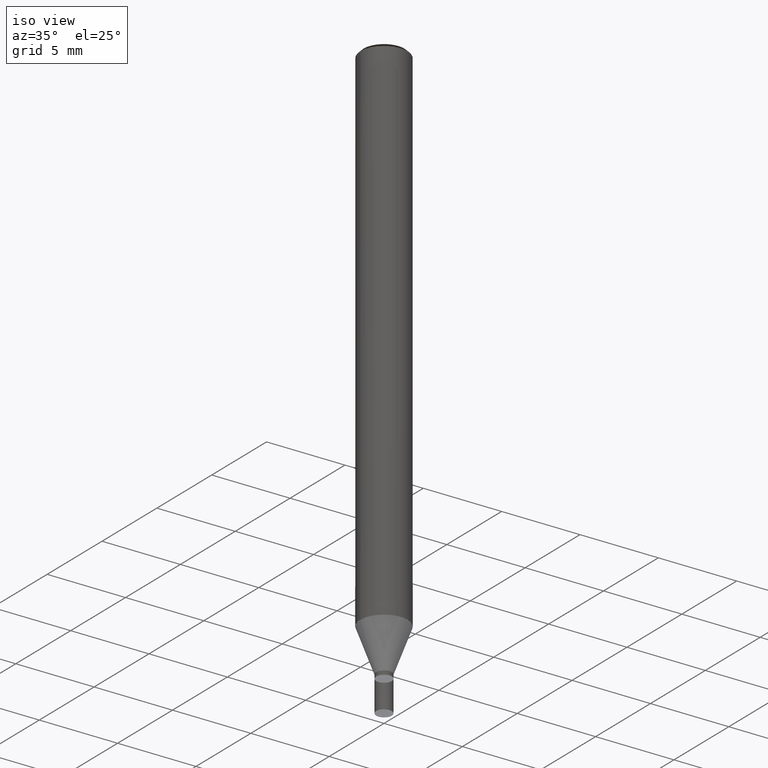
[diagram: clean part render]
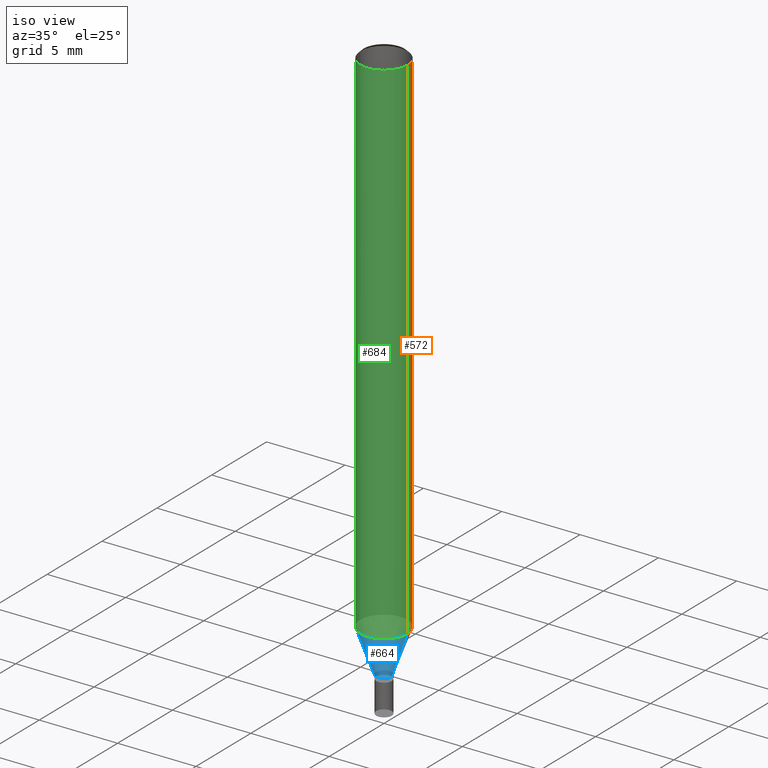
[diagram: same view with three faces highlighted in distinct colors, each labeled with its STEP entity id]
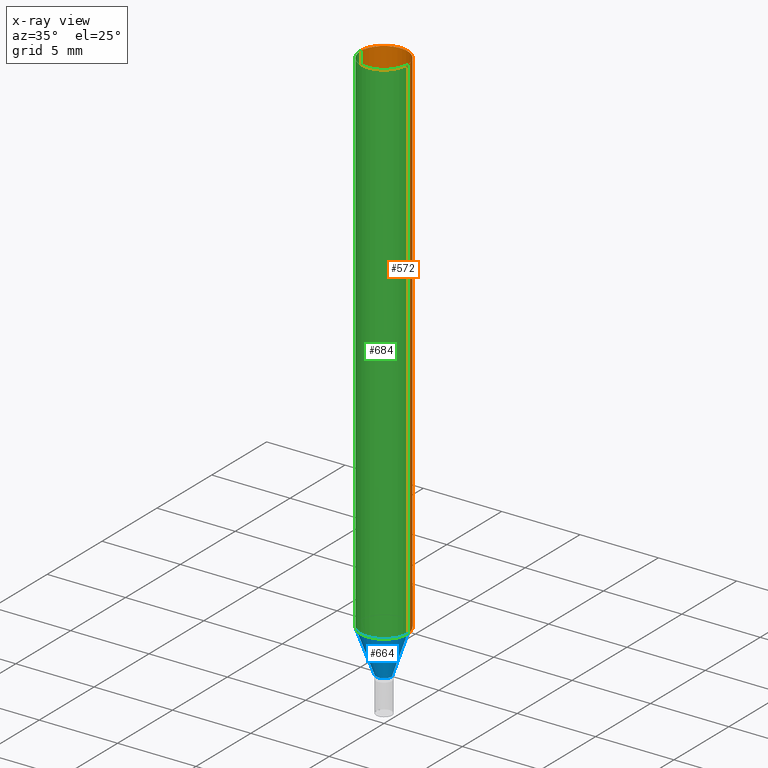
[diagram: x-ray of the same camera — body ghosted, the three highlighted faces saturated]
A machine part, iso view with three faces highlighted in distinct colors.
The next image is the same camera in x-ray (body ghosted, the three faces saturated) — at least one of them is partly hidden behind the body in this view.
Their STEP definitions:

[orange] entity #572 — the highlighted face is a freeform B-spline surface patch.
#355=CARTESIAN_POINT('',(1.5,0.0,0.0));
#356=CARTESIAN_POINT('',(1.5,1.5,0.0));
#357=CARTESIAN_POINT('',(0.0,1.5,0.0));
#358=CARTESIAN_POINT('',(-1.5,1.5,0.0));
#359=CARTESIAN_POINT('',(-1.5,0.0,0.0));
#360=CARTESIAN_POINT('',(1.5,0.0,32.8));
#361=CARTESIAN_POINT('',(1.5,1.5,32.8));
#362=CARTESIAN_POINT('',(0.0,1.5,32.8));
#363=CARTESIAN_POINT('',(-1.5,1.5,32.8));
#364=CARTESIAN_POINT('',(-1.5,0.0,32.8));
#553=(
BOUNDED_SURFACE()
B_SPLINE_SURFACE(1,2,(
(#355,#356,#357,#358,#359),
(#360,#361,#362,#363,#364)
), .UNSPECIFIED.,.F.,.F.,.F.)
B_SPLINE_SURFACE_WITH_KNOTS((2,2),(3,2,3),(
0.0,1.0),(
0.0,0.5,1.0), .UNSPECIFIED.)
GEOMETRIC_REPRESENTATION_ITEM()
RATIONAL_B_SPLINE_SURFACE(((1.0,0.707106781187,1.0,0.707106781187,1.0),
(1.0,0.707106781187,1.0,0.707106781187,1.0)
))
REPRESENTATION_ITEM('')
SURFACE()
);
#554=(
BOUNDED_CURVE()
B_SPLINE_CURVE(2,(#359,#358,#357,#356,#355),.UNSPECIFIED.,.F.,.F.)
B_SPLINE_CURVE_WITH_KNOTS((3,2,3),
(0.0,0.5,1.0),.UNSPECIFIED.)
CURVE()
GEOMETRIC_REPRESENTATION_ITEM()
RATIONAL_B_SPLINE_CURVE((1.0,0.707106781187,1.0,0.707106781187,1.0))
REPRESENTATION_ITEM('')
);
#555=(
BOUNDED_CURVE()
B_SPLINE_CURVE(1,(#355,#360),.UNSPECIFIED.,.F.,.F.)
B_SPLINE_CURVE_WITH_KNOTS((2,2),
(0.0,1.0),.UNSPECIFIED.)
CURVE()
GEOMETRIC_REPRESENTATION_ITEM()
RATIONAL_B_SPLINE_CURVE((1.0,1.0))
REPRESENTATION_ITEM('')
);
#556=(
BOUNDED_CURVE()
B_SPLINE_CURVE(2,(#360,#361,#362,#363,#364),.UNSPECIFIED.,.F.,.F.)
B_SPLINE_CURVE_WITH_KNOTS((3,2,3),
(0.0,0.5,1.0),.UNSPECIFIED.)
CURVE()
GEOMETRIC_REPRESENTATION_ITEM()
RATIONAL_B_SPLINE_CURVE((1.0,0.707106781187,1.0,0.707106781187,1.0))
REPRESENTATION_ITEM('')
);
#557=(
BOUNDED_CURVE()
B_SPLINE_CURVE(1,(#364,#359),.UNSPECIFIED.,.F.,.F.)
B_SPLINE_CURVE_WITH_KNOTS((2,2),
(0.0,1.0),.UNSPECIFIED.)
CURVE()
GEOMETRIC_REPRESENTATION_ITEM()
RATIONAL_B_SPLINE_CURVE((1.0,1.0))
REPRESENTATION_ITEM('')
);
#558=VERTEX_POINT('',#355);
#559=VERTEX_POINT('',#359);
#560=VERTEX_POINT('',#360);
#561=VERTEX_POINT('',#364);
#562=EDGE_CURVE('',#559,#558,#554,.T.);
#563=EDGE_CURVE('',#558,#560,#555,.T.);
#564=EDGE_CURVE('',#560,#561,#556,.T.);
#565=EDGE_CURVE('',#561,#559,#557,.T.);
#566=ORIENTED_EDGE('',*,*,#562,.T.);
#567=ORIENTED_EDGE('',*,*,#563,.T.);
#568=ORIENTED_EDGE('',*,*,#564,.T.);
#569=ORIENTED_EDGE('',*,*,#565,.T.);
#570=EDGE_LOOP('',(#566,#567,#568,#569));
#571=FACE_OUTER_BOUND('',#570,.T.);
#572=ADVANCED_FACE('',(#571),#553,.T.);

[blue] entity #664 — the highlighted face is a freeform B-spline surface patch.
#350=CARTESIAN_POINT('',(0.5,0.0,-2.747477419455));
#354=CARTESIAN_POINT('',(-0.5,0.0,-2.747477419455));
#355=CARTESIAN_POINT('',(1.5,0.0,0.0));
#359=CARTESIAN_POINT('',(-1.5,0.0,0.0));
#371=CARTESIAN_POINT('',(-0.5,-0.5,-2.747477419455));
#372=CARTESIAN_POINT('',(0.0,-0.5,-2.747477419455));
#373=CARTESIAN_POINT('',(0.5,-0.5,-2.747477419455));
#374=CARTESIAN_POINT('',(-1.5,-1.5,0.0));
#375=CARTESIAN_POINT('',(0.0,-1.5,0.0));
#376=CARTESIAN_POINT('',(1.5,-1.5,0.0));
#645=(
BOUNDED_SURFACE()
B_SPLINE_SURFACE(1,2,(
(#354,#371,#372,#373,#350),
(#359,#374,#375,#376,#355)
), .UNSPECIFIED.,.F.,.F.,.F.)
B_SPLINE_SURFACE_WITH_KNOTS((2,2),(3,2,3),(
0.0,1.0),(
0.0,0.5,1.0), .UNSPECIFIED.)
GEOMETRIC_REPRESENTATION_ITEM()
RATIONAL_B_SPLINE_SURFACE(((1.0,0.707106781187,1.0,0.707106781187,1.0),
(1.0,0.707106781187,1.0,0.707106781187,1.0)
))
REPRESENTATION_ITEM('')
SURFACE()
);
#646=(
BOUNDED_CURVE()
B_SPLINE_CURVE(2,(#350,#373,#372,#371,#354),.UNSPECIFIED.,.F.,.F.)
B_SPLINE_CURVE_WITH_KNOTS((3,2,3),
(0.0,0.5,1.0),.UNSPECIFIED.)
CURVE()
GEOMETRIC_REPRESENTATION_ITEM()
RATIONAL_B_SPLINE_CURVE((1.0,0.707106781187,1.0,0.707106781187,1.0))
REPRESENTATION_ITEM('')
);
#647=(
BOUNDED_CURVE()
B_SPLINE_CURVE(1,(#354,#359),.UNSPECIFIED.,.F.,.F.)
B_SPLINE_CURVE_WITH_KNOTS((2,2),
(0.0,1.0),.UNSPECIFIED.)
CURVE()
GEOMETRIC_REPRESENTATION_ITEM()
RATIONAL_B_SPLINE_CURVE((1.0,1.0))
REPRESENTATION_ITEM('')
);
#648=(
BOUNDED_CURVE()
B_SPLINE_CURVE(2,(#359,#374,#375,#376,#355),.UNSPECIFIED.,.F.,.F.)
B_SPLINE_CURVE_WITH_KNOTS((3,2,3),
(0.0,0.5,1.0),.UNSPECIFIED.)
CURVE()
GEOMETRIC_REPRESENTATION_ITEM()
RATIONAL_B_SPLINE_CURVE((1.0,0.707106781187,1.0,0.707106781187,1.0))
REPRESENTATION_ITEM('')
);
#649=(
BOUNDED_CURVE()
B_SPLINE_CURVE(1,(#355,#350),.UNSPECIFIED.,.F.,.F.)
B_SPLINE_CURVE_WITH_KNOTS((2,2),
(0.0,1.0),.UNSPECIFIED.)
CURVE()
GEOMETRIC_REPRESENTATION_ITEM()
RATIONAL_B_SPLINE_CURVE((1.0,1.0))
REPRESENTATION_ITEM('')
);
#650=VERTEX_POINT('',#350);
#651=VERTEX_POINT('',#354);
#652=VERTEX_POINT('',#355);
#653=VERTEX_POINT('',#359);
#654=EDGE_CURVE('',#650,#651,#646,.T.);
#655=EDGE_CURVE('',#651,#653,#647,.T.);
#656=EDGE_CURVE('',#653,#652,#648,.T.);
#657=EDGE_CURVE('',#652,#650,#649,.T.);
#658=ORIENTED_EDGE('',*,*,#654,.T.);
#659=ORIENTED_EDGE('',*,*,#655,.T.);
#660=ORIENTED_EDGE('',*,*,#656,.T.);
#661=ORIENTED_EDGE('',*,*,#657,.T.);
#662=EDGE_LOOP('',(#658,#659,#660,#661));
#663=FACE_OUTER_BOUND('',#662,.T.);
#664=ADVANCED_FACE('',(#663),#645,.T.);

[green] entity #684 — the highlighted face is a freeform B-spline surface patch.
#355=CARTESIAN_POINT('',(1.5,0.0,0.0));
#359=CARTESIAN_POINT('',(-1.5,0.0,0.0));
#360=CARTESIAN_POINT('',(1.5,0.0,32.8));
#364=CARTESIAN_POINT('',(-1.5,0.0,32.8));
#374=CARTESIAN_POINT('',(-1.5,-1.5,0.0));
#375=CARTESIAN_POINT('',(0.0,-1.5,0.0));
#376=CARTESIAN_POINT('',(1.5,-1.5,0.0));
#377=CARTESIAN_POINT('',(-1.5,-1.5,32.8));
#378=CARTESIAN_POINT('',(0.0,-1.5,32.8));
#379=CARTESIAN_POINT('',(1.5,-1.5,32.8));
#665=(
BOUNDED_SURFACE()
B_SPLINE_SURFACE(1,2,(
(#359,#374,#375,#376,#355),
(#364,#377,#378,#379,#360)
), .UNSPECIFIED.,.F.,.F.,.F.)
B_SPLINE_SURFACE_WITH_KNOTS((2,2),(3,2,3),(
0.0,1.0),(
0.0,0.5,1.0), .UNSPECIFIED.)
GEOMETRIC_REPRESENTATION_ITEM()
RATIONAL_B_SPLINE_SURFACE(((1.0,0.707106781187,1.0,0.707106781187,1.0),
(1.0,0.707106781187,1.0,0.707106781187,1.0)
))
REPRESENTATION_ITEM('')
SURFACE()
);
#666=(
BOUNDED_CURVE()
B_SPLINE_CURVE(2,(#355,#376,#375,#374,#359),.UNSPECIFIED.,.F.,.F.)
B_SPLINE_CURVE_WITH_KNOTS((3,2,3),
(0.0,0.5,1.0),.UNSPECIFIED.)
CURVE()
GEOMETRIC_REPRESENTATION_ITEM()
RATIONAL_B_SPLINE_CURVE((1.0,0.707106781187,1.0,0.707106781187,1.0))
REPRESENTATION_ITEM('')
);
#667=(
BOUNDED_CURVE()
B_SPLINE_CURVE(1,(#359,#364),.UNSPECIFIED.,.F.,.F.)
B_SPLINE_CURVE_WITH_KNOTS((2,2),
(0.0,1.0),.UNSPECIFIED.)
CURVE()
GEOMETRIC_REPRESENTATION_ITEM()
RATIONAL_B_SPLINE_CURVE((1.0,1.0))
REPRESENTATION_ITEM('')
);
#668=(
BOUNDED_CURVE()
B_SPLINE_CURVE(2,(#364,#377,#378,#379,#360),.UNSPECIFIED.,.F.,.F.)
B_SPLINE_CURVE_WITH_KNOTS((3,2,3),
(0.0,0.5,1.0),.UNSPECIFIED.)
CURVE()
GEOMETRIC_REPRESENTATION_ITEM()
RATIONAL_B_SPLINE_CURVE((1.0,0.707106781187,1.0,0.707106781187,1.0))
REPRESENTATION_ITEM('')
);
#669=(
BOUNDED_CURVE()
B_SPLINE_CURVE(1,(#360,#355),.UNSPECIFIED.,.F.,.F.)
B_SPLINE_CURVE_WITH_KNOTS((2,2),
(0.0,1.0),.UNSPECIFIED.)
CURVE()
GEOMETRIC_REPRESENTATION_ITEM()
RATIONAL_B_SPLINE_CURVE((1.0,1.0))
REPRESENTATION_ITEM('')
);
#670=VERTEX_POINT('',#355);
#671=VERTEX_POINT('',#359);
#672=VERTEX_POINT('',#360);
#673=VERTEX_POINT('',#364);
#674=EDGE_CURVE('',#670,#671,#666,.T.);
#675=EDGE_CURVE('',#671,#673,#667,.T.);
#676=EDGE_CURVE('',#673,#672,#668,.T.);
#677=EDGE_CURVE('',#672,#670,#669,.T.);
#678=ORIENTED_EDGE('',*,*,#674,.T.);
#679=ORIENTED_EDGE('',*,*,#675,.T.);
#680=ORIENTED_EDGE('',*,*,#676,.T.);
#681=ORIENTED_EDGE('',*,*,#677,.T.);
#682=EDGE_LOOP('',(#678,#679,#680,#681));
#683=FACE_OUTER_BOUND('',#682,.T.);
#684=ADVANCED_FACE('',(#683),#665,.T.);